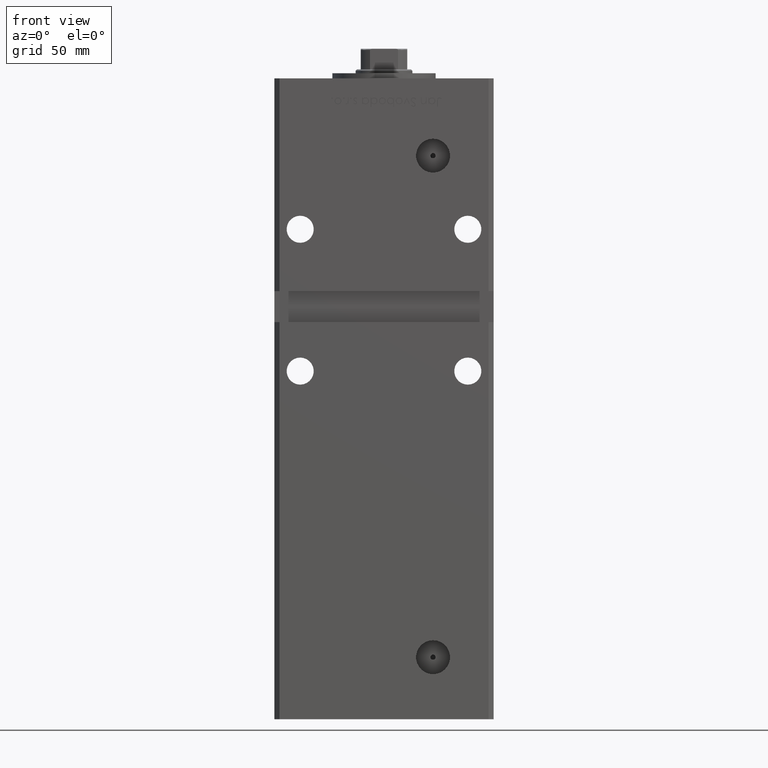
[diagram: clean part render]
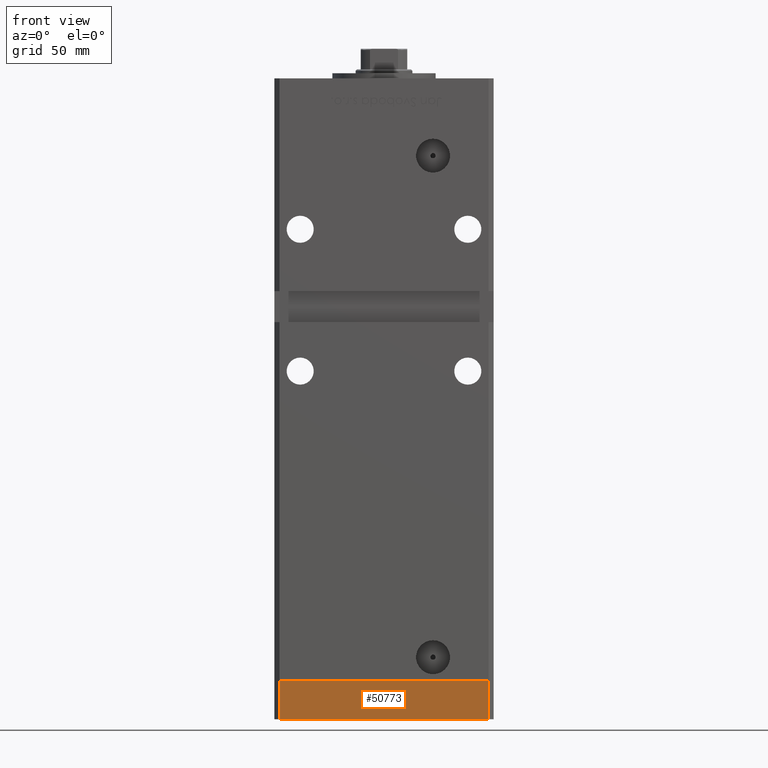
[diagram: same view with one face highlighted and labeled with its STEP entity id]
A machine part, front view. The second image highlights one B-rep face of the part: STEP entity #50773.
In plain terms, the highlighted planar face has unit normal (0, -1, -0).
Its self-contained STEP definition (entity closure, byte-faithful):
#60 = VERTEX_POINT ( 'NONE', #22481 ) ;
#1252 = CARTESIAN_POINT ( 'NONE',  ( -40.49999999999999289, -37.50000000000002132, -15.00000000000000000 ) ) ;
#2605 = DIRECTION ( 'NONE',  ( 0.000000000000000000, 0.000000000000000000, 1.000000000000000000 ) ) ;
#2987 = EDGE_CURVE ( 'NONE', #50070, #60, #29774, .T. ) ;
#3320 = LINE ( 'NONE', #23773, #33549 ) ;
#3703 = CARTESIAN_POINT ( 'NONE',  ( 40.50000000000000000, -37.50000000000000711, 0.000000000000000000 ) ) ;
#5701 = EDGE_LOOP ( 'NONE', ( #38190, #47440, #28604, #11824 ) ) ;
#8844 = CARTESIAN_POINT ( 'NONE',  ( -40.49999999999999289, -37.50000000000002132, -15.00000000000000000 ) ) ;
#9587 = VECTOR ( 'NONE', #2605, 1000.000000000000000 ) ;
#11515 = EDGE_CURVE ( 'NONE', #41103, #49175, #43505, .T. ) ;
#11824 = ORIENTED_EDGE ( 'NONE', *, *, #41460, .T. ) ;
#13630 = DIRECTION ( 'NONE',  ( 1.000000000000000000, 1.713307136767217096E-16, 0.000000000000000000 ) ) ;
#15708 = DIRECTION ( 'NONE',  ( 0.000000000000000000, 0.000000000000000000, 1.000000000000000000 ) ) ;
#21755 = DIRECTION ( 'NONE',  ( 1.000000000000000000, 1.713307136767217096E-16, 0.000000000000000000 ) ) ;
#22481 = CARTESIAN_POINT ( 'NONE',  ( 40.50000000000000000, -37.50000000000000711, -15.00000000000000000 ) ) ;
#23758 = DIRECTION ( 'NONE',  ( 1.713307136767217096E-16, -1.000000000000000000, 0.000000000000000000 ) ) ;
#23773 = CARTESIAN_POINT ( 'NONE',  ( -40.49999999999999289, -37.50000000000002132, -15.00000000000000000 ) ) ;
#25840 = CARTESIAN_POINT ( 'NONE',  ( -40.49999999999999289, -37.50000000000002132, 0.000000000000000000 ) ) ;
#27788 = CARTESIAN_POINT ( 'NONE',  ( -40.49999999999999289, -37.50000000000002132, -15.00000000000000000 ) ) ;
#28604 = ORIENTED_EDGE ( 'NONE', *, *, #2987, .T. ) ;
#29774 = LINE ( 'NONE', #1252, #38730 ) ;
#29966 = AXIS2_PLACEMENT_3D ( 'NONE', #27788, #23758, #35070 ) ;
#31296 = PLANE ( 'NONE',  #29966 ) ;
#32958 = VECTOR ( 'NONE', #21755, 1000.000000000000000 ) ;
#33549 = VECTOR ( 'NONE', #15708, 1000.000000000000000 ) ;
#35070 = DIRECTION ( 'NONE',  ( 1.000000000000000000, 1.713307136767217096E-16, 0.000000000000000000 ) ) ;
#38190 = ORIENTED_EDGE ( 'NONE', *, *, #11515, .F. ) ;
#38730 = VECTOR ( 'NONE', #13630, 1000.000000000000000 ) ;
#38903 = EDGE_CURVE ( 'NONE', #50070, #41103, #3320, .T. ) ;
#39216 = CARTESIAN_POINT ( 'NONE',  ( 40.50000000000000000, -37.50000000000000711, -15.00000000000000000 ) ) ;
#41103 = VERTEX_POINT ( 'NONE', #25840 ) ;
#41460 = EDGE_CURVE ( 'NONE', #60, #49175, #47796, .T. ) ;
#42456 = CARTESIAN_POINT ( 'NONE',  ( -40.49999999999999289, -37.50000000000002132, 0.000000000000000000 ) ) ;
#43505 = LINE ( 'NONE', #42456, #32958 ) ;
#47440 = ORIENTED_EDGE ( 'NONE', *, *, #38903, .F. ) ;
#47796 = LINE ( 'NONE', #39216, #9587 ) ;
#49175 = VERTEX_POINT ( 'NONE', #3703 ) ;
#50070 = VERTEX_POINT ( 'NONE', #8844 ) ;
#50773 = ADVANCED_FACE ( 'NONE', ( #52248 ), #31296, .T. ) ;
#52248 = FACE_OUTER_BOUND ( 'NONE', #5701, .T. ) ;